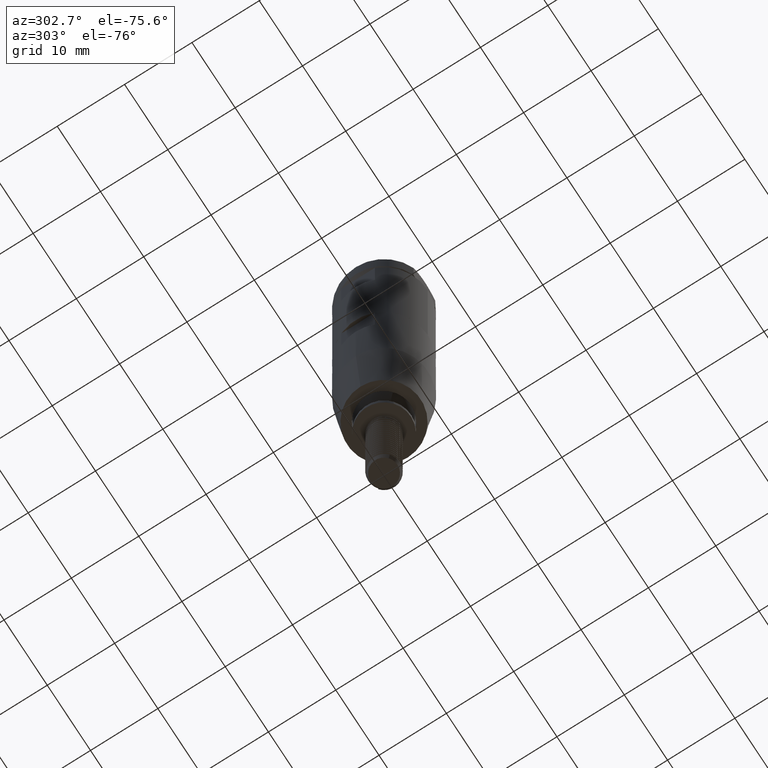
[diagram: clean part render]
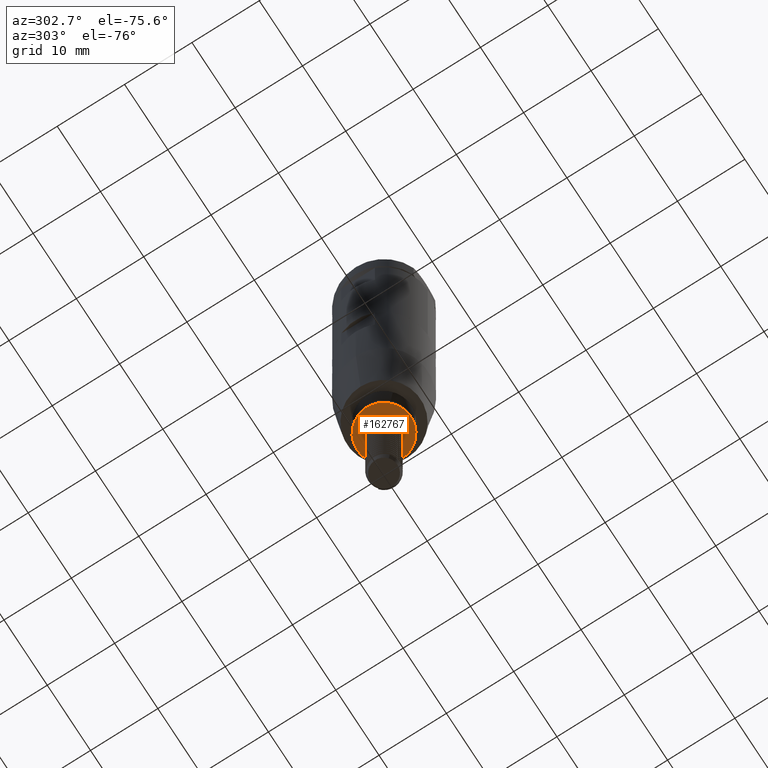
[diagram: same view with one face highlighted and labeled with its STEP entity id]
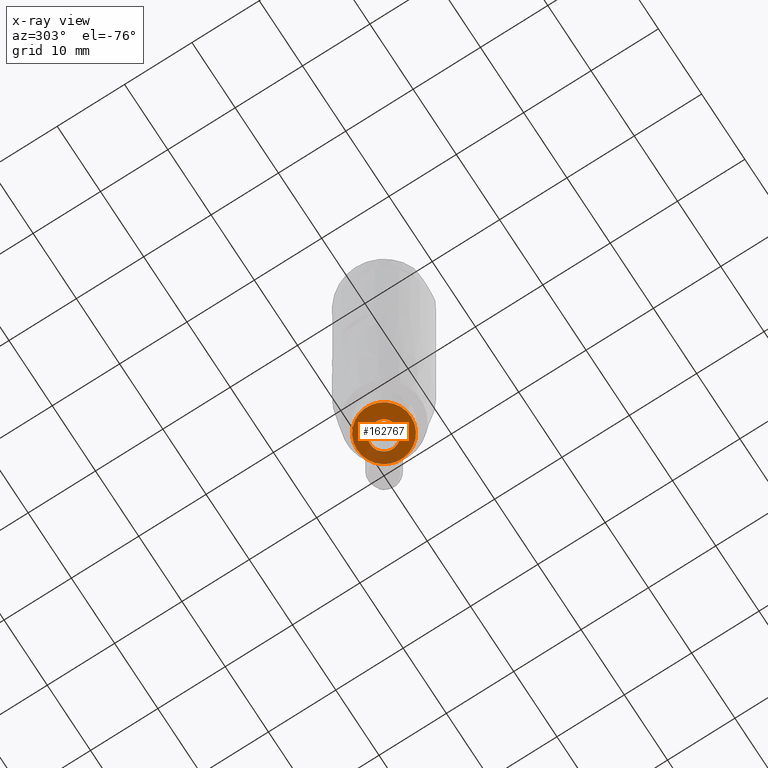
[diagram: x-ray of the same camera — body ghosted, the highlighted face saturated]
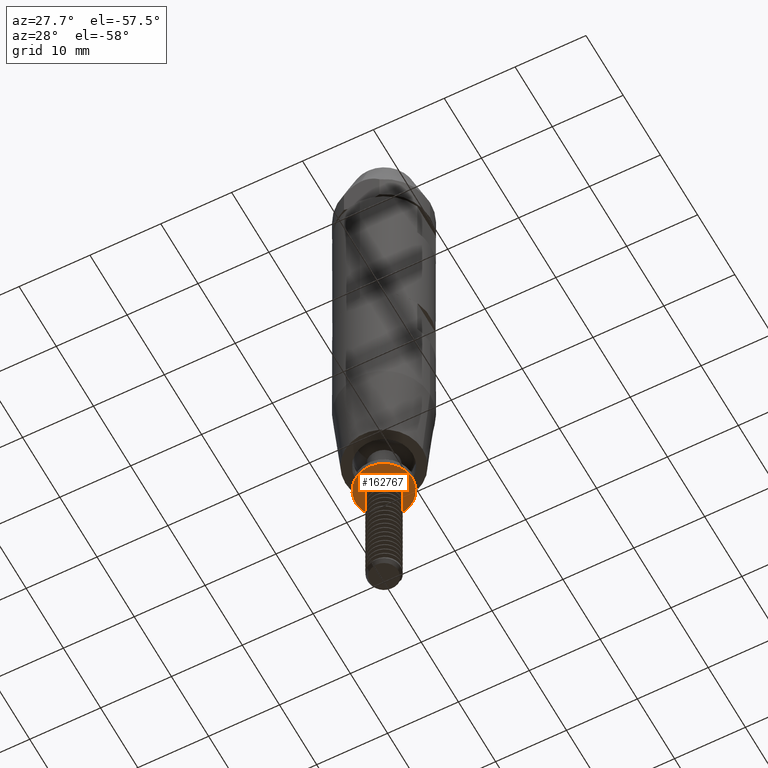
[diagram: same view with one face highlighted and labeled with its STEP entity id]
A machine part, auxiliary view. The second image highlights one B-rep face of the part: STEP entity #162767.
The next image is the same camera in x-ray: the body ghosted, the highlighted face saturated — about 22% of this face is hidden behind the body in this view.
A second angle (auxiliary view) of the same face is appended — the face is thin or edge-on in the first view.
In plain terms, the highlighted planar face has unit normal (0, -0, 1).
Its self-contained STEP definition (entity closure, byte-faithful):
#918 = B_SPLINE_CURVE_WITH_KNOTS ( 'NONE', 3,
 ( #62577, #139820, #122967, #183465, #47696, #138845, #108104, #32840, #93260, #180520, #90343, #153709, #3144, #48680, #63552, #123940 ),
 .UNSPECIFIED., .F., .F.,
 ( 4, 2, 2, 2, 2, 2, 2, 4 ),
 ( 4.077647903770867232E-16, 0.0005109138034097740304, 0.001021827606819140184, 0.001532741410228506337, 0.002043655213637872708, 0.003065482820456605015, 0.003576396623865971385, 0.004087310427275337756 ),
 .UNSPECIFIED. ) ;
#2911 = DIRECTION ( 'NONE',  ( -1.000000000000000000, 0.000000000000000000, 0.000000000000000000 ) ) ;
#3144 = CARTESIAN_POINT ( 'NONE',  ( 2.080530271541753518, -9.622902093797254253, -0.9184000961499819704 ) ) ;
#4711 = ORIENTED_EDGE ( 'NONE', *, *, #163430, .F. ) ;
#6131 = VERTEX_POINT ( 'NONE', #111297 ) ;
#10335 = AXIS2_PLACEMENT_3D ( 'NONE', #26857, #147695, #11976 ) ;
#11976 = DIRECTION ( 'NONE',  ( -1.000000000000000000, -1.183003969278697507E-16, 0.000000000000000000 ) ) ;
#12950 = FACE_OUTER_BOUND ( 'NONE', #15714, .T. ) ;
#15609 = DIRECTION ( 'NONE',  ( -1.000000000000000000, 0.000000000000000000, 0.000000000000000000 ) ) ;
#15714 = EDGE_LOOP ( 'NONE', ( #115763, #137288 ) ) ;
#16794 = AXIS2_PLACEMENT_3D ( 'NONE', #64850, #125258, #170856 ) ;
#17793 = EDGE_CURVE ( 'NONE', #33672, #186217, #918, .T. ) ;
#17857 = VERTEX_POINT ( 'NONE', #33818 ) ;
#24058 = ORIENTED_EDGE ( 'NONE', *, *, #155580, .T. ) ;
#26857 = CARTESIAN_POINT ( 'NONE',  ( 4.000000000000004441, -9.622902093797254253, 0.000000000000000000 ) ) ;
#27630 = CARTESIAN_POINT ( 'NONE',  ( -1.803987949928027579, -9.622902093797252476, -0.2696941244989005115 ) ) ;
#32840 = CARTESIAN_POINT ( 'NONE',  ( 0.7414138406582493346, -9.622902093797259582, -1.919926006934292273 ) ) ;
#33672 = VERTEX_POINT ( 'NONE', #148185 ) ;
#33818 = CARTESIAN_POINT ( 'NONE',  ( 1.851160266040560165, -9.622902093797250700, 1.447655231549507482 ) ) ;
#40519 = CARTESIAN_POINT ( 'NONE',  ( -1.783403201396603022, -9.622902093797252476, 0.3240028611145134296 ) ) ;
#42645 = EDGE_CURVE ( 'NONE', #153562, #6131, #159303, .T. ) ;
#46565 = CARTESIAN_POINT ( 'NONE',  ( -0.3691978056924323792, -9.622902093797257805, 2.026456443181841038 ) ) ;
#47696 = CARTESIAN_POINT ( 'NONE',  ( -0.1090774302826738873, -9.622902093797264911, -1.939128799344876919 ) ) ;
#48680 = CARTESIAN_POINT ( 'NONE',  ( 2.232814342138504937, -9.622902093797256029, -0.6142735013952292933 ) ) ;
#48909 = CIRCLE ( 'NONE', #159637, 2.350000000000002309 ) ;
#49489 = CARTESIAN_POINT ( 'NONE',  ( 0.1404600043932406339, -9.622902093797259582, 2.120867722627392649 ) ) ;
#55587 = FACE_BOUND ( 'NONE', #95561, .T. ) ;
#58190 = AXIS2_PLACEMENT_3D ( 'NONE', #78164, #109821, #2911 ) ;
#60460 = CARTESIAN_POINT ( 'NONE',  ( 1.729192449208505122, -9.622902093797252476, 1.571156776431386959 ) ) ;
#61450 = CARTESIAN_POINT ( 'NONE',  ( 1.596250243155817428, -9.622902093797261358, 1.680150231542157258 ) ) ;
#62511 = CARTESIAN_POINT ( 'NONE',  ( 1.537119882390420948E-15, -9.622902093797254253, 0.000000000000000000 ) ) ;
#62577 = CARTESIAN_POINT ( 'NONE',  ( -0.8797550523514988674, -9.622902093797327083, -1.580363939983930210 ) ) ;
#63388 = CARTESIAN_POINT ( 'NONE',  ( 0.6551512500552102436, -9.622902093797261358, 2.090656376090545443 ) ) ;
#63552 = CARTESIAN_POINT ( 'NONE',  ( 2.292093693010366806, -9.622902093797259582, -0.4529516014509074040 ) ) ;
#64850 = CARTESIAN_POINT ( 'NONE',  ( 1.537119882390420948E-15, -9.622902093797254253, 0.000000000000000000 ) ) ;
#71219 = CARTESIAN_POINT ( 'NONE',  ( -1.554760479902352888, -9.622902093797252476, -0.9317660363815050140 ) ) ;
#76270 = CARTESIAN_POINT ( 'NONE',  ( -0.8356531702269843764, -9.622902093797250700, 1.804581971189387568 ) ) ;
#77253 = CARTESIAN_POINT ( 'NONE',  ( -1.580363939983929544, -9.622902093797327083, 0.8797550523515005327 ) ) ;
#78164 = CARTESIAN_POINT ( 'NONE',  ( 1.537119882390420948E-15, -9.622902093797254253, 0.000000000000000000 ) ) ;
#78234 = CARTESIAN_POINT ( 'NONE',  ( 1.305765622313714180, -9.622902093797257805, 1.865615784122254706 ) ) ;
#80401 = B_SPLINE_CURVE_WITH_KNOTS ( 'NONE', 3,
 ( #153546, #60460, #61450, #78234, #121828, #166488, #63388, #92119, #49489, #152560, #46565, #154519, #76270, #107944, #139653, #106981, #94072, #77253 ),
 .UNSPECIFIED., .F., .F.,
 ( 4, 2, 2, 2, 2, 2, 2, 2, 4 ),
 ( 0.000000000000000000, 0.0005153366465050092772, 0.001030673293010018554, 0.001546009939515027940, 0.002061346586020037976, 0.002576683232525047579, 0.003092019879030057181, 0.003607356525535067217, 0.004122693172040076820 ),
 .UNSPECIFIED. ) ;
#84130 = CARTESIAN_POINT ( 'NONE',  ( -1.260478664007537830, -9.622902093797321754, -1.302527873837401984 ) ) ;
#86073 = CARTESIAN_POINT ( 'NONE',  ( -1.823911162593045310, -9.622902093797252476, -0.02846044971717482178 ) ) ;
#86278 = PLANE ( 'NONE',  #10335 ) ;
#87078 = B_SPLINE_CURVE_WITH_KNOTS ( 'NONE', 3,
 ( #192099, #114800, #103857, #163367, #40519, #86073, #27630, #130667, #101909, #71219, #194046, #145549, #84130, #176271, #88038, #148470 ),
 .UNSPECIFIED., .F., .F.,
 ( 4, 2, 2, 2, 2, 2, 2, 4 ),
 ( 4.039024323734316278E-16, 0.0003546579591325718975, 0.0007093159182647398213, 0.001418631836529075886, 0.001773289795661243864, 0.002127947754793411625, 0.002482605713925579386, 0.002837263673057747581 ),
 .UNSPECIFIED. ) ;
#88038 = CARTESIAN_POINT ( 'NONE',  ( -0.9840692614946106032, -9.622902093797289780, -1.522294434470734981 ) ) ;
#89972 = ORIENTED_EDGE ( 'NONE', *, *, #130301, .F. ) ;
#90343 = CARTESIAN_POINT ( 'NONE',  ( 1.658638019349768733, -9.622902093797259582, -1.458833857912531506 ) ) ;
#90887 = CARTESIAN_POINT ( 'NONE',  ( 1.537119882390420948E-15, -9.622902093797254253, 0.000000000000000000 ) ) ;
#91247 = DIRECTION ( 'NONE',  ( -1.183003969278697507E-16, 1.000000000000000000, 0.000000000000000000 ) ) ;
#92119 = CARTESIAN_POINT ( 'NONE',  ( 0.3116916138213852716, -9.622902093797254253, 2.124143176096278562 ) ) ;
#93260 = CARTESIAN_POINT ( 'NONE',  ( 0.9088386239899128860, -9.622902093797252476, -1.872789320259436563 ) ) ;
#94072 = CARTESIAN_POINT ( 'NONE',  ( -1.520076290667311758, -9.622902093797289780, 1.042970397835612184 ) ) ;
#95561 = EDGE_LOOP ( 'NONE', ( #110519, #24058, #151400, #89972, #4711 ) ) ;
#101909 = CARTESIAN_POINT ( 'NONE',  ( -1.662725789157819545, -9.622902093797250700, -0.7216723955437129856 ) ) ;
#103857 = CARTESIAN_POINT ( 'NONE',  ( -1.685472546762034840, -9.622902093797259582, 0.6668747914259350873 ) ) ;
#106981 = CARTESIAN_POINT ( 'NONE',  ( -1.437456847578396202, -9.622902093797252476, 1.193680780531257701 ) ) ;
#107944 = CARTESIAN_POINT ( 'NONE',  ( -1.106939224171948455, -9.622902093797250700, 1.593260101112854210 ) ) ;
#108104 = CARTESIAN_POINT ( 'NONE',  ( 0.4044405527680446366, -9.622902093797259582, -1.970373912425429586 ) ) ;
#109821 = DIRECTION ( 'NONE',  ( -1.183003969278697507E-16, 1.000000000000000000, 0.000000000000000000 ) ) ;
#110519 = ORIENTED_EDGE ( 'NONE', *, *, #150654, .T. ) ;
#111297 = CARTESIAN_POINT ( 'NONE',  ( -4.000000000000000888, -9.622902093797254253, 0.000000000000000000 ) ) ;
#114800 = CARTESIAN_POINT ( 'NONE',  ( -1.638433445496727980, -9.622902093797289780, 0.7754408432091013381 ) ) ;
#115763 = ORIENTED_EDGE ( 'NONE', *, *, #173507, .F. ) ;
#121572 = CIRCLE ( 'NONE', #143673, 2.350000000000002309 ) ;
#121828 = CARTESIAN_POINT ( 'NONE',  ( 1.148461285251215935, -9.622902093797298662, 1.941573953633817240 ) ) ;
#122967 = CARTESIAN_POINT ( 'NONE',  ( -0.5956544611593891370, -9.622902093797254253, -1.771216864323112761 ) ) ;
#123940 = CARTESIAN_POINT ( 'NONE',  ( 2.332614803277114124, -9.622902093797256029, -0.2853211866169190203 ) ) ;
#125258 = DIRECTION ( 'NONE',  ( -1.183003969278697507E-16, 1.000000000000000000, 0.000000000000000000 ) ) ;
#127561 = CARTESIAN_POINT ( 'NONE',  ( 2.350000000000004086, -9.622902093797254253, 2.877919977996282786E-16 ) ) ;
#130301 = EDGE_CURVE ( 'NONE', #151374, #33672, #87078, .T. ) ;
#130667 = CARTESIAN_POINT ( 'NONE',  ( -1.706925592324552099, -9.622902093797250700, -0.6097714609104021299 ) ) ;
#137288 = ORIENTED_EDGE ( 'NONE', *, *, #42645, .F. ) ;
#138845 = CARTESIAN_POINT ( 'NONE',  ( 0.2304849344285407053, -9.622902093797264911, -1.974338362334167929 ) ) ;
#139653 = CARTESIAN_POINT ( 'NONE',  ( -1.228226496612261576, -9.622902093797250700, 1.470467983758392494 ) ) ;
#139820 = CARTESIAN_POINT ( 'NONE',  ( -0.7435007205402489605, -9.622902093797293332, -1.686567069296412313 ) ) ;
#143673 = AXIS2_PLACEMENT_3D ( 'NONE', #90887, #151323, #15609 ) ;
#145549 = CARTESIAN_POINT ( 'NONE',  ( -1.343888087915393159, -9.622902093797256029, -1.216351452469284000 ) ) ;
#147695 = DIRECTION ( 'NONE',  ( -1.183003969278697507E-16, 1.000000000000000000, 0.000000000000000000 ) ) ;
#148185 = CARTESIAN_POINT ( 'NONE',  ( -0.8797550523514988674, -9.622902093797327083, -1.580363939983930210 ) ) ;
#148470 = CARTESIAN_POINT ( 'NONE',  ( -0.8797550523514988674, -9.622902093797327083, -1.580363939983930210 ) ) ;
#150654 = EDGE_CURVE ( 'NONE', #17857, #179536, #121572, .T. ) ;
#151323 = DIRECTION ( 'NONE',  ( -1.183003969278697507E-16, 1.000000000000000000, 0.000000000000000000 ) ) ;
#151374 = VERTEX_POINT ( 'NONE', #193282 ) ;
#151400 = ORIENTED_EDGE ( 'NONE', *, *, #17793, .F. ) ;
#152560 = CARTESIAN_POINT ( 'NONE',  ( -0.2009763456267688042, -9.622902093797259582, 2.073055518504763661 ) ) ;
#153546 = CARTESIAN_POINT ( 'NONE',  ( 1.851160266040560165, -9.622902093797250700, 1.447655231549507482 ) ) ;
#153562 = VERTEX_POINT ( 'NONE', #161142 ) ;
#153709 = CARTESIAN_POINT ( 'NONE',  ( 1.985819424785866039, -9.622902093797261358, -1.063801428902354074 ) ) ;
#154519 = CARTESIAN_POINT ( 'NONE',  ( -0.6842526322165239927, -9.622902093797259582, 1.893293982733583070 ) ) ;
#155580 = EDGE_CURVE ( 'NONE', #179536, #186217, #48909, .T. ) ;
#158002 = CARTESIAN_POINT ( 'NONE',  ( 2.332614803277114124, -9.622902093797256029, -0.2853211866169190203 ) ) ;
#159227 = CIRCLE ( 'NONE', #16794, 4.000000000000002665 ) ;
#159303 = CIRCLE ( 'NONE', #58190, 4.000000000000002665 ) ;
#159637 = AXIS2_PLACEMENT_3D ( 'NONE', #62511, #91247, #179482 ) ;
#161142 = CARTESIAN_POINT ( 'NONE',  ( 4.000000000000004441, -9.622902093797254253, 4.898587196589416773E-16 ) ) ;
#162767 = ADVANCED_FACE ( 'NONE', ( #12950, #55587 ), #86278, .F. ) ;
#163367 = CARTESIAN_POINT ( 'NONE',  ( -1.758028600359016647, -9.622902093797257805, 0.4414466373726265158 ) ) ;
#163430 = EDGE_CURVE ( 'NONE', #17857, #151374, #80401, .T. ) ;
#166488 = CARTESIAN_POINT ( 'NONE',  ( 0.8250902745588457599, -9.622902093797296885, 2.053358535921312011 ) ) ;
#170856 = DIRECTION ( 'NONE',  ( -1.000000000000000000, 0.000000000000000000, 0.000000000000000000 ) ) ;
#173507 = EDGE_CURVE ( 'NONE', #6131, #153562, #159227, .T. ) ;
#176271 = CARTESIAN_POINT ( 'NONE',  ( -1.080956543428809979, -9.622902093797325307, -1.454963324541223679 ) ) ;
#179482 = DIRECTION ( 'NONE',  ( -1.000000000000000000, 0.000000000000000000, 0.000000000000000000 ) ) ;
#179536 = VERTEX_POINT ( 'NONE', #127561 ) ;
#180520 = CARTESIAN_POINT ( 'NONE',  ( 1.380191576950178023, -9.622902093797256029, -1.673296499765551948 ) ) ;
#183465 = CARTESIAN_POINT ( 'NONE',  ( -0.2773907518943438122, -9.622902093797256029, -1.898548937646988399 ) ) ;
#186217 = VERTEX_POINT ( 'NONE', #158002 ) ;
#192099 = CARTESIAN_POINT ( 'NONE',  ( -1.580363939983929544, -9.622902093797327083, 0.8797550523515005327 ) ) ;
#193282 = CARTESIAN_POINT ( 'NONE',  ( -1.580363939983929544, -9.622902093797327083, 0.8797550523515005327 ) ) ;
#194046 = CARTESIAN_POINT ( 'NONE',  ( -1.491025684769730963, -9.622902093797254253, -1.030722298255928093 ) ) ;